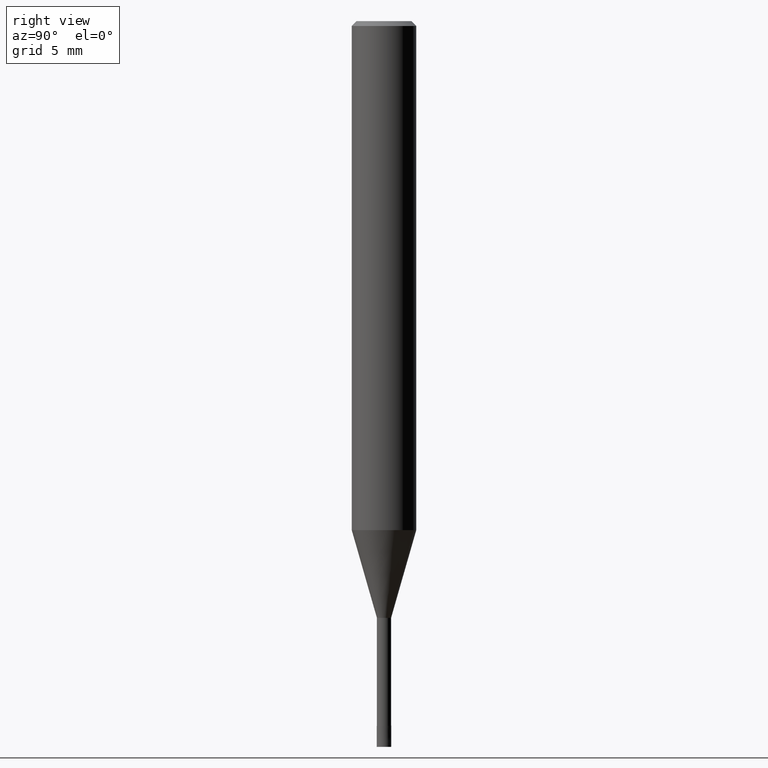
[diagram: clean part render]
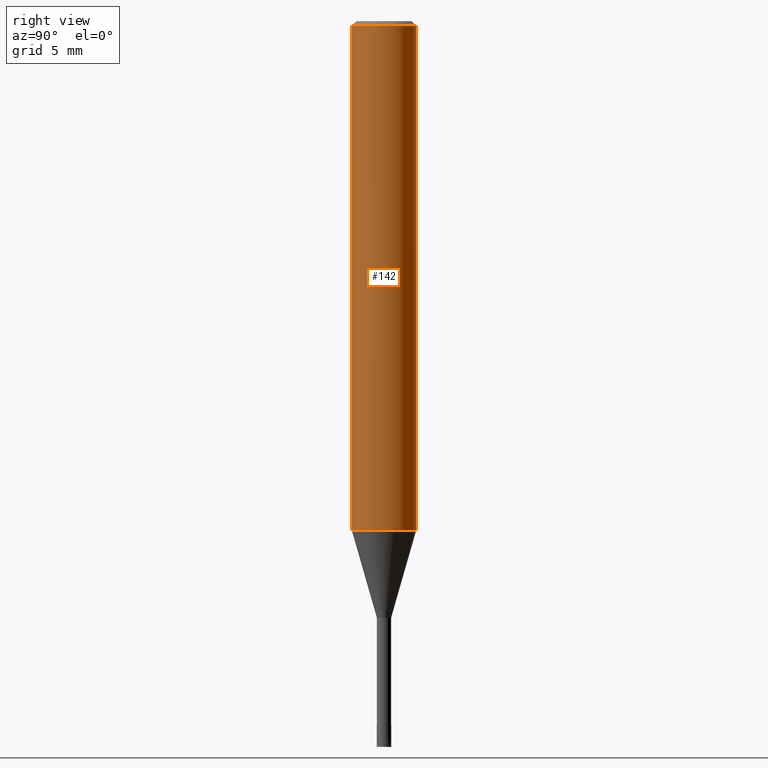
[diagram: same view with one face highlighted and labeled with its STEP entity id]
A machine part, right view. The second image highlights one B-rep face of the part: STEP entity #142.
In plain terms, the highlighted cylindrical surface (edge-blend (fillet) strip) has radius 2 mm, axis along (-0, -0, 1).
Its self-contained STEP definition (entity closure, byte-faithful):
#98=VERTEX_POINT('',#236);
#104=EDGE_CURVE('',#108,#110,#243,.T.);
#108=VERTEX_POINT('',#247);
#110=VERTEX_POINT('',#249);
#112=EDGE_CURVE('',#98,#108,#251,.T.);
#118=EDGE_CURVE('',#110,#122,#258,.T.);
#122=VERTEX_POINT('',#263);
#124=EDGE_CURVE('',#98,#122,#265,.T.);
#142=ADVANCED_FACE('',(#287),#288,.T.);
#236=CARTESIAN_POINT('',(0.0,2.0,-0.300000000000001));
#243=CIRCLE('',#392,2.0);
#247=CARTESIAN_POINT('',(0.0,2.0,-31.56));
#249=CARTESIAN_POINT('',(2.44921270764475E-016,-2.0,-31.56));
#251=LINE('',#402,#403);
#258=LINE('',#411,#412);
#263=CARTESIAN_POINT('',(2.44921270764475E-016,-2.0,-0.300000000000001));
#265=CIRCLE('',#420,2.0);
#287=FACE_OUTER_BOUND('',#447,.T.);
#288=CYLINDRICAL_SURFACE('',#448,2.0);
#392=AXIS2_PLACEMENT_3D('',#562,#563,#564);
#402=CARTESIAN_POINT('',(-2.44921270764475E-016,2.0,-15.93));
#403=VECTOR('',#568,1.0);
#411=CARTESIAN_POINT('',(2.44921270764475E-016,-2.0,-15.93));
#412=VECTOR('',#577,1.0);
#420=AXIS2_PLACEMENT_3D('',#584,#585,#586);
#447=EDGE_LOOP('',(#615,#616,#617,#618));
#448=AXIS2_PLACEMENT_3D('',#619,#620,#621);
#562=CARTESIAN_POINT('',(0.0,0.0,-31.56));
#563=DIRECTION('',(0.0,0.0,-1.0));
#564=DIRECTION('',(0.0,1.0,0.0));
#568=DIRECTION('',(0.0,0.0,-1.0));
#577=DIRECTION('',(-0.0,-0.0,1.0));
#584=CARTESIAN_POINT('',(0.0,0.0,-0.300000000000001));
#585=DIRECTION('',(0.0,0.0,-1.0));
#586=DIRECTION('',(0.0,1.0,0.0));
#615=ORIENTED_EDGE('',*,*,#112,.F.);
#616=ORIENTED_EDGE('',*,*,#124,.T.);
#617=ORIENTED_EDGE('',*,*,#118,.F.);
#618=ORIENTED_EDGE('',*,*,#104,.F.);
#619=CARTESIAN_POINT('',(0.0,0.0,-15.93));
#620=DIRECTION('',(-0.0,-0.0,1.0));
#621=DIRECTION('',(0.0,1.0,0.0));